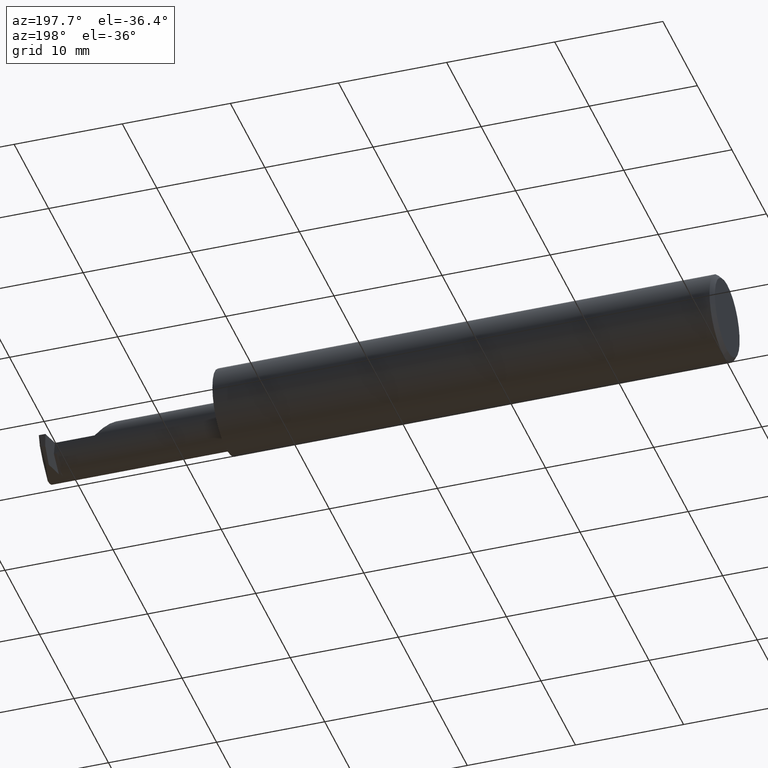
[diagram: clean part render]
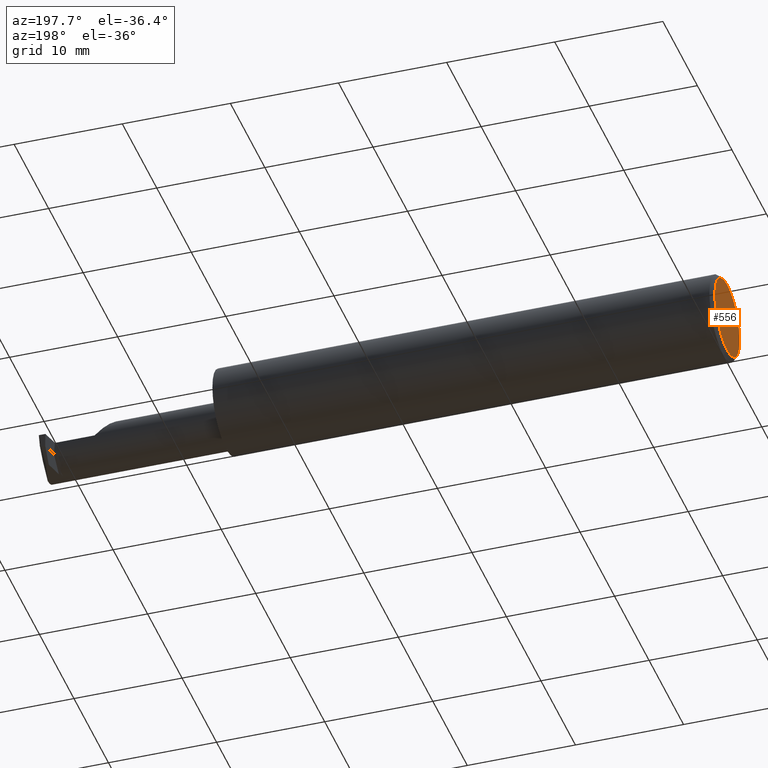
[diagram: same view with one face highlighted and labeled with its STEP entity id]
A machine part, auxiliary view. The second image highlights one B-rep face of the part: STEP entity #556.
In plain terms, the highlighted planar face has unit normal (1, 0, 0).
Its self-contained STEP definition (entity closure, byte-faithful):
#56 = CARTESIAN_POINT ( 'NONE',  ( 0.000000000000000000, 1.819825143532968629E-17, 0.1411000000000003085 ) ) ;
#109 = DIRECTION ( 'NONE',  ( -1.000000000000000000, -0.000000000000000000, -0.000000000000000000 ) ) ;
#257 = AXIS2_PLACEMENT_3D ( 'NONE', #925, #109, #263 ) ;
#259 = CIRCLE ( 'NONE', #257, 0.1411000000000003085 ) ;
#263 = DIRECTION ( 'NONE',  ( 0.000000000000000000, 0.000000000000000000, -1.000000000000000000 ) ) ;
#293 = AXIS2_PLACEMENT_3D ( 'NONE', #906, #690, #528 ) ;
#303 = VERTEX_POINT ( 'NONE', #56 ) ;
#356 = CIRCLE ( 'NONE', #293, 0.1411000000000003085 ) ;
#400 = CARTESIAN_POINT ( 'NONE',  ( 0.000000000000000000, 0.000000000000000000, 0.000000000000000000 ) ) ;
#404 = FACE_OUTER_BOUND ( 'NONE', #847, .T. ) ;
#428 = ORIENTED_EDGE ( 'NONE', *, *, #479, .T. ) ;
#479 = EDGE_CURVE ( 'NONE', #927, #303, #356, .T. ) ;
#489 = AXIS2_PLACEMENT_3D ( 'NONE', #400, #849, #787 ) ;
#521 = EDGE_CURVE ( 'NONE', #303, #927, #259, .T. ) ;
#528 = DIRECTION ( 'NONE',  ( 0.000000000000000000, 0.000000000000000000, -1.000000000000000000 ) ) ;
#556 = ADVANCED_FACE ( 'NONE', ( #404 ), #557, .F. ) ;
#557 = PLANE ( 'NONE',  #489 ) ;
#604 = CARTESIAN_POINT ( 'NONE',  ( 0.000000000000000000, 0.000000000000000000, -0.1411000000000003085 ) ) ;
#690 = DIRECTION ( 'NONE',  ( -1.000000000000000000, -0.000000000000000000, -0.000000000000000000 ) ) ;
#787 = DIRECTION ( 'NONE',  ( 0.000000000000000000, 0.000000000000000000, -1.000000000000000000 ) ) ;
#847 = EDGE_LOOP ( 'NONE', ( #428, #875 ) ) ;
#849 = DIRECTION ( 'NONE',  ( 1.000000000000000000, 0.000000000000000000, 0.000000000000000000 ) ) ;
#875 = ORIENTED_EDGE ( 'NONE', *, *, #521, .T. ) ;
#906 = CARTESIAN_POINT ( 'NONE',  ( 0.000000000000000000, 0.000000000000000000, 0.000000000000000000 ) ) ;
#925 = CARTESIAN_POINT ( 'NONE',  ( 0.000000000000000000, 0.000000000000000000, 0.000000000000000000 ) ) ;
#927 = VERTEX_POINT ( 'NONE', #604 ) ;